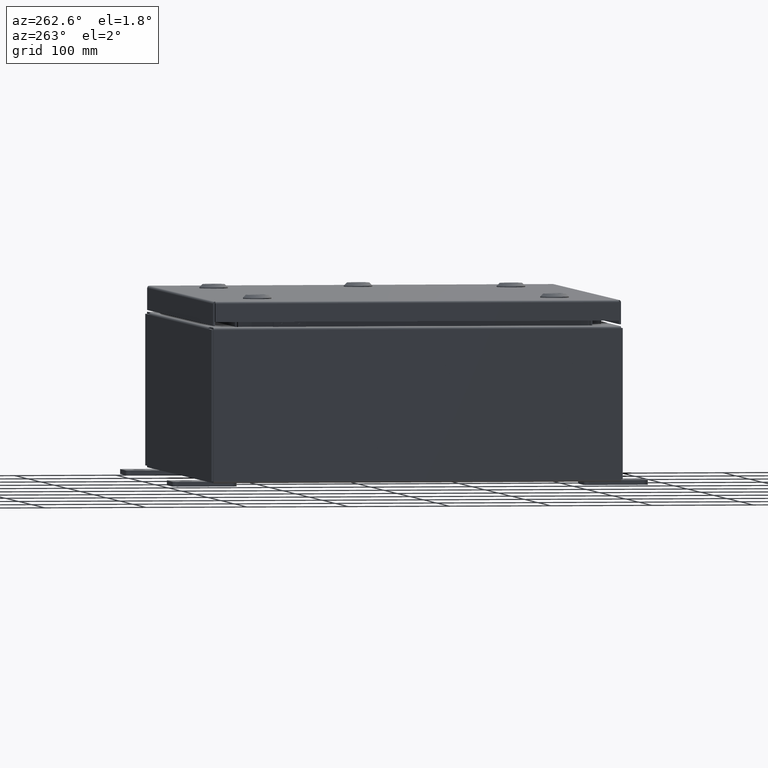
[diagram: clean part render]
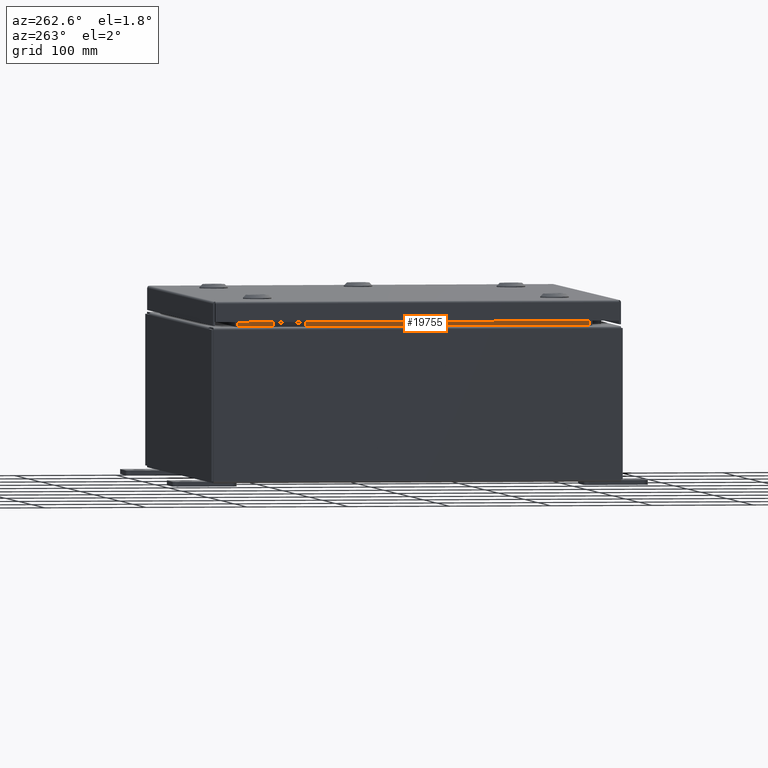
[diagram: same view with one face highlighted and labeled with its STEP entity id]
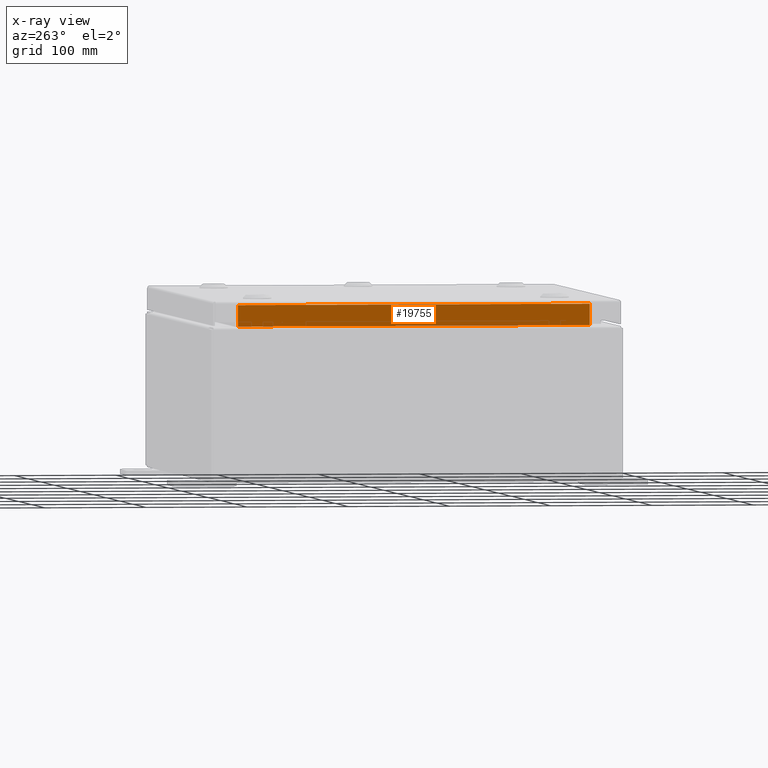
[diagram: x-ray of the same camera — body ghosted, the highlighted face saturated]
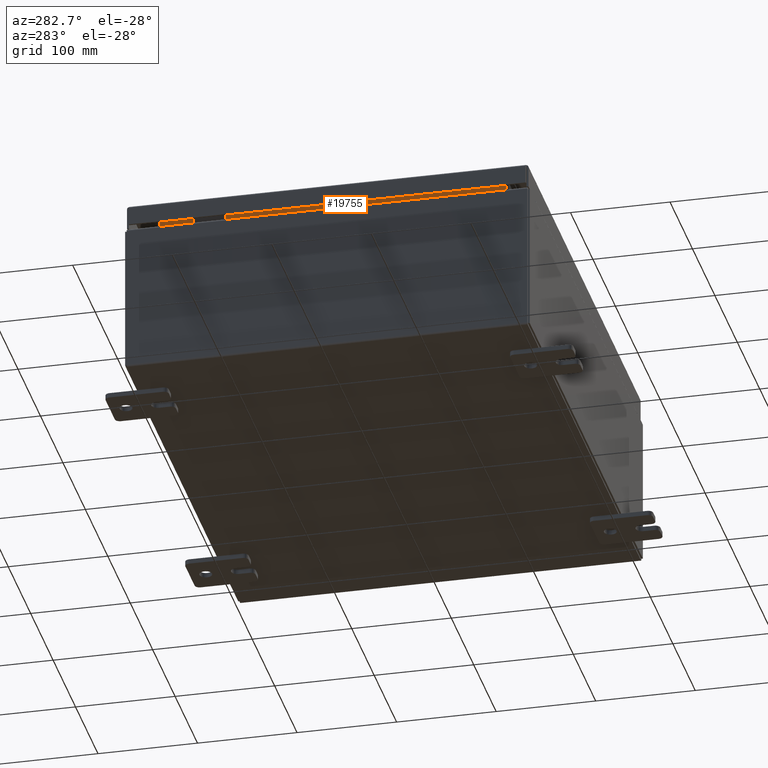
[diagram: same view with one face highlighted and labeled with its STEP entity id]
A machine part, auxiliary view. The second image highlights one B-rep face of the part: STEP entity #19755.
The next image is the same camera in x-ray: the body ghosted, the highlighted face saturated — about 0% of this face is hidden behind the body in this view.
A second angle (auxiliary view) of the same face is appended — the face is thin or edge-on in the first view.
In plain terms, the highlighted planar face has unit normal (-1, 0, -0).
Its self-contained STEP definition (entity closure, byte-faithful):
#157 = LINE ( 'NONE', #41422, #38481 ) ;
#381 = LINE ( 'NONE', #11866, #13204 ) ;
#387 = LINE ( 'NONE', #13366, #47017 ) ;
#2208 = DIRECTION ( 'NONE',  ( -7.983482721210634800E-017, 1.000000000000000000, 1.596696544242127000E-016 ) ) ;
#2934 = DIRECTION ( 'NONE',  ( -0.0000000000000000000, -1.000000000000000000, -0.0000000000000000000 ) ) ;
#5427 = CARTESIAN_POINT ( 'NONE',  ( -8.949700000000023100, -6.843750000000000000, 6.762900000000006400 ) ) ;
#5523 = EDGE_LOOP ( 'NONE', ( #44755, #55547, #20762, #56250 ) ) ;
#7738 = DIRECTION ( 'NONE',  ( -4.723826639860397600E-015, 0.0000000000000000000, 1.000000000000000000 ) ) ;
#11211 = EDGE_CURVE ( 'NONE', #39561, #42533, #157, .T. ) ;
#11866 = CARTESIAN_POINT ( 'NONE',  ( -8.949700000000023100, 6.843750000000000000, 6.850600000000007100 ) ) ;
#13204 = VECTOR ( 'NONE', #45493, 39.37007874015748100 ) ;
#13366 = CARTESIAN_POINT ( 'NONE',  ( -8.949700000000019500, -6.843750000000000000, 5.925300000000007100 ) ) ;
#16729 = EDGE_CURVE ( 'NONE', #32674, #25617, #34670, .T. ) ;
#19755 = ADVANCED_FACE ( 'NONE', ( #56987 ), #50765, .T. ) ;
#20762 = ORIENTED_EDGE ( 'NONE', *, *, #32637, .F. ) ;
#25617 = VERTEX_POINT ( 'NONE', #32639 ) ;
#26281 = EDGE_CURVE ( 'NONE', #42533, #32674, #387, .T. ) ;
#31729 = CARTESIAN_POINT ( 'NONE',  ( -8.949699999999991100, 3.375163520215061600E-030, -4.227683127875855400E-014 ) ) ;
#32637 = EDGE_CURVE ( 'NONE', #25617, #39561, #381, .T. ) ;
#32639 = CARTESIAN_POINT ( 'NONE',  ( -8.949700000000019500, 6.843749999999996400, 5.938300000000007900 ) ) ;
#32674 = VERTEX_POINT ( 'NONE', #40863 ) ;
#33199 = VECTOR ( 'NONE', #2208, 39.37007874015748100 ) ;
#34670 = LINE ( 'NONE', #54896, #33199 ) ;
#36502 = DIRECTION ( 'NONE',  ( -1.000000000000000000, 3.771258835731996300E-031, -4.723826639860397600E-015 ) ) ;
#38481 = VECTOR ( 'NONE', #2934, 39.37007874015748100 ) ;
#39561 = VERTEX_POINT ( 'NONE', #44804 ) ;
#40863 = CARTESIAN_POINT ( 'NONE',  ( -8.949700000000019500, -6.843750000000000000, 5.938300000000007900 ) ) ;
#41422 = CARTESIAN_POINT ( 'NONE',  ( -8.949700000000023100, 6.843750000000000000, 6.762900000000006400 ) ) ;
#42163 = DIRECTION ( 'NONE',  ( 4.723826639860392000E-015, -0.0000000000000000000, -1.000000000000000000 ) ) ;
#42533 = VERTEX_POINT ( 'NONE', #5427 ) ;
#44755 = ORIENTED_EDGE ( 'NONE', *, *, #26281, .F. ) ;
#44804 = CARTESIAN_POINT ( 'NONE',  ( -8.949700000000023100, 6.843750000000000000, 6.762900000000006400 ) ) ;
#45493 = DIRECTION ( 'NONE',  ( -4.723826639860397600E-015, -0.0000000000000000000, 1.000000000000000000 ) ) ;
#47017 = VECTOR ( 'NONE', #42163, 39.37007874015748100 ) ;
#50765 = PLANE ( 'NONE',  #60600 ) ;
#54896 = CARTESIAN_POINT ( 'NONE',  ( -8.949700000000019500, -6.843750000000000000, 5.938300000000007000 ) ) ;
#55547 = ORIENTED_EDGE ( 'NONE', *, *, #11211, .F. ) ;
#56250 = ORIENTED_EDGE ( 'NONE', *, *, #16729, .F. ) ;
#56987 = FACE_OUTER_BOUND ( 'NONE', #5523, .T. ) ;
#60600 = AXIS2_PLACEMENT_3D ( 'NONE', #31729, #36502, #7738 ) ;